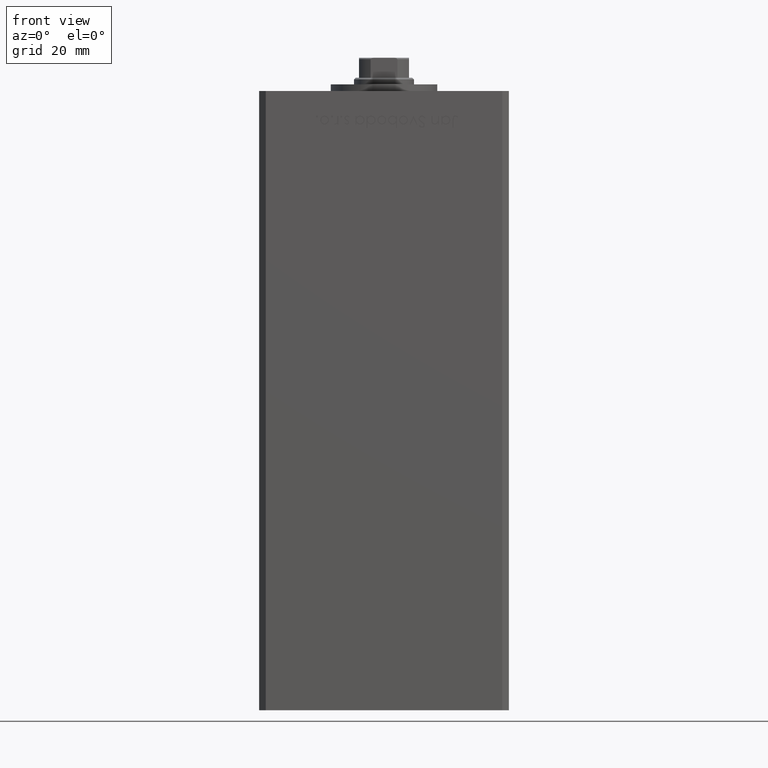
[diagram: clean part render]
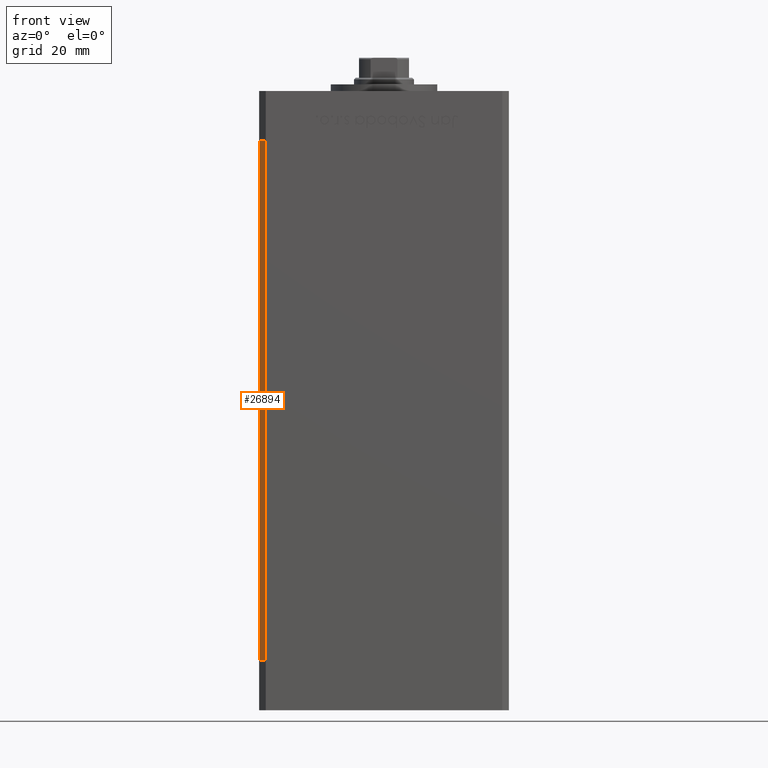
[diagram: same view with one face highlighted and labeled with its STEP entity id]
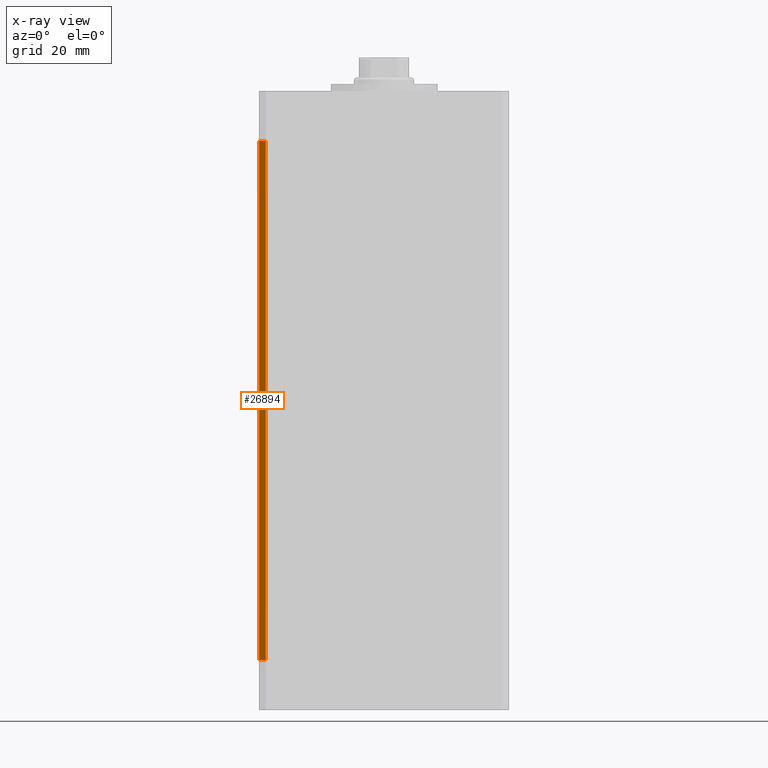
[diagram: x-ray of the same camera — body ghosted, the highlighted face saturated]
A machine part, front view. The second image highlights one B-rep face of the part: STEP entity #26894.
The next image is the same camera in x-ray: the body ghosted, the highlighted face saturated — about 0% of this face is hidden behind the body in this view.
In plain terms, the highlighted planar face has unit normal (0.7071, 0.7071, 0).
Its self-contained STEP definition (entity closure, byte-faithful):
#814 = VERTEX_POINT ( 'NONE', #24805 ) ;
#2051 = CARTESIAN_POINT ( 'NONE',  ( -37.49999999999999289, -30.50000000000000000, 156.0000000000000000 ) ) ;
#2065 = CARTESIAN_POINT ( 'NONE',  ( -35.49999999999999289, -32.50000000000000000, 156.0000000000000000 ) ) ;
#2177 = CARTESIAN_POINT ( 'NONE',  ( -37.49999999999999289, -30.50000000000000000, 0.000000000000000000 ) ) ;
#2887 = ORIENTED_EDGE ( 'NONE', *, *, #12758, .F. ) ;
#10225 = EDGE_LOOP ( 'NONE', ( #10420, #2887, #51781, #16764 ) ) ;
#10420 = ORIENTED_EDGE ( 'NONE', *, *, #39330, .T. ) ;
#12088 = DIRECTION ( 'NONE',  ( 0.7071067811865474617, -0.7071067811865474617, 0.000000000000000000 ) ) ;
#12758 = EDGE_CURVE ( 'NONE', #35784, #814, #49281, .T. ) ;
#14892 = DIRECTION ( 'NONE',  ( -0.000000000000000000, -0.000000000000000000, -1.000000000000000000 ) ) ;
#16310 = LINE ( 'NONE', #36083, #27521 ) ;
#16754 = DIRECTION ( 'NONE',  ( -0.7071067811865474617, 0.7071067811865474617, 0.000000000000000000 ) ) ;
#16764 = ORIENTED_EDGE ( 'NONE', *, *, #34171, .T. ) ;
#17422 = VECTOR ( 'NONE', #45087, 1000.000000000000000 ) ;
#18027 = DIRECTION ( 'NONE',  ( 0.7071067811865474617, -0.7071067811865474617, 0.000000000000000000 ) ) ;
#18459 = CARTESIAN_POINT ( 'NONE',  ( -37.49999999999999289, -30.50000000000000000, 0.000000000000000000 ) ) ;
#18478 = EDGE_CURVE ( 'NONE', #42434, #35784, #16310, .T. ) ;
#20182 = AXIS2_PLACEMENT_3D ( 'NONE', #32315, #48384, #16754 ) ;
#21355 = CARTESIAN_POINT ( 'NONE',  ( -35.49999999999999289, -32.50000000000000000, 156.0000000000000000 ) ) ;
#23870 = FACE_OUTER_BOUND ( 'NONE', #10225, .T. ) ;
#24805 = CARTESIAN_POINT ( 'NONE',  ( -35.49999999999999289, -32.50000000000000000, 0.000000000000000000 ) ) ;
#25407 = VECTOR ( 'NONE', #14892, 1000.000000000000000 ) ;
#26894 = ADVANCED_FACE ( 'NONE', ( #23870 ), #39949, .F. ) ;
#26968 = LINE ( 'NONE', #2177, #48168 ) ;
#27521 = VECTOR ( 'NONE', #12088, 1000.000000000000114 ) ;
#27565 = VERTEX_POINT ( 'NONE', #18459 ) ;
#31510 = CARTESIAN_POINT ( 'NONE',  ( -37.49999999999999289, -30.50000000000000000, 156.0000000000000000 ) ) ;
#32315 = CARTESIAN_POINT ( 'NONE',  ( -37.49999999999999289, -30.50000000000000000, 156.0000000000000000 ) ) ;
#34171 = EDGE_CURVE ( 'NONE', #42434, #27565, #35728, .T. ) ;
#35728 = LINE ( 'NONE', #31510, #25407 ) ;
#35784 = VERTEX_POINT ( 'NONE', #2065 ) ;
#36083 = CARTESIAN_POINT ( 'NONE',  ( -37.49999999999999289, -30.50000000000000000, 156.0000000000000000 ) ) ;
#39330 = EDGE_CURVE ( 'NONE', #27565, #814, #26968, .T. ) ;
#39949 = PLANE ( 'NONE',  #20182 ) ;
#42434 = VERTEX_POINT ( 'NONE', #2051 ) ;
#45087 = DIRECTION ( 'NONE',  ( -0.000000000000000000, -0.000000000000000000, -1.000000000000000000 ) ) ;
#48168 = VECTOR ( 'NONE', #18027, 1000.000000000000114 ) ;
#48384 = DIRECTION ( 'NONE',  ( 0.7071067811865475727, 0.7071067811865475727, -0.000000000000000000 ) ) ;
#49281 = LINE ( 'NONE', #21355, #17422 ) ;
#51781 = ORIENTED_EDGE ( 'NONE', *, *, #18478, .F. ) ;